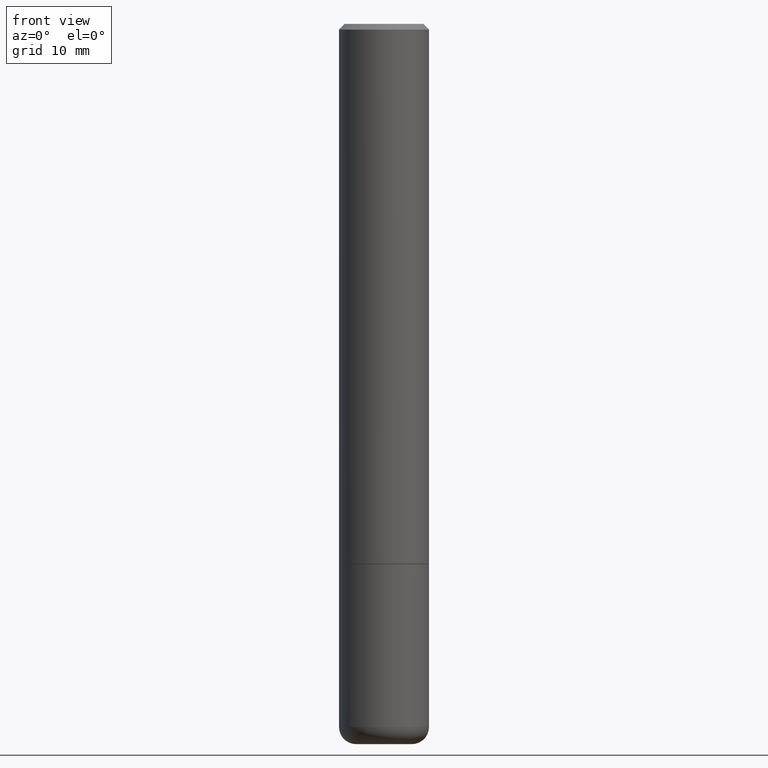
[diagram: clean part render]
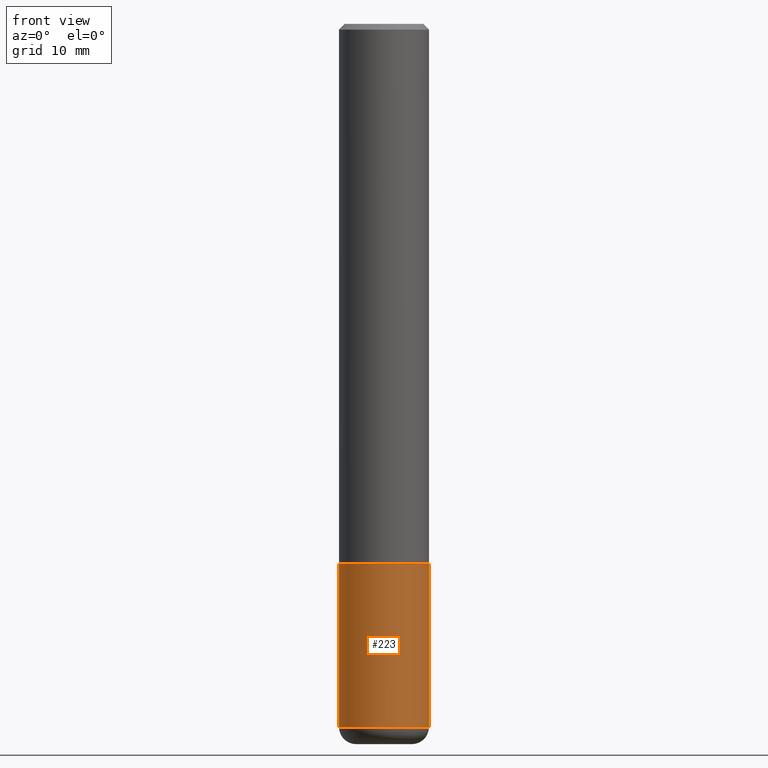
[diagram: same view with one face highlighted and labeled with its STEP entity id]
A machine part, front view. The second image highlights one B-rep face of the part: STEP entity #223.
In plain terms, the highlighted cylindrical surface (partial cylindrical patch) has radius 3.9688 mm, axis along (-0, 0, 1).
Its self-contained STEP definition (entity closure, byte-faithful):
#24 = FACE_OUTER_BOUND ( 'NONE', #167, .T. ) ;
#28 = DIRECTION ( 'NONE',  ( -2.445468806185136877E-29, 3.491481338843145188E-15, 1.000000000000000000 ) ) ;
#39 = CIRCLE ( 'NONE', #181, 0.1562500000000000000 ) ;
#66 = VERTEX_POINT ( 'NONE', #270 ) ;
#93 = ORIENTED_EDGE ( 'NONE', *, *, #144, .F. ) ;
#94 = DIRECTION ( 'NONE',  ( -2.445468806185136877E-29, 3.491481338843145188E-15, 1.000000000000000000 ) ) ;
#126 = DIRECTION ( 'NONE',  ( 1.000000000000000000, -6.982962677686266711E-15, 4.876176775795936353E-29 ) ) ;
#128 = CARTESIAN_POINT ( 'NONE',  ( -0.1562500000000001110, -7.408991442152118508E-15, -2.440000000000000391 ) ) ;
#139 = ORIENTED_EDGE ( 'NONE', *, *, #230, .F. ) ;
#144 = EDGE_CURVE ( 'NONE', #66, #348, #39, .T. ) ;
#158 = LINE ( 'NONE', #301, #310 ) ;
#167 = EDGE_LOOP ( 'NONE', ( #139, #272, #192, #93 ) ) ;
#173 = CARTESIAN_POINT ( 'NONE',  ( 4.585254011597131119E-29, -6.546527510330898707E-15, -1.875000000000000000 ) ) ;
#180 = CARTESIAN_POINT ( 'NONE',  ( 0.1562500000000001110, -9.610302385165753433E-15, -2.440000000000000391 ) ) ;
#181 = AXIS2_PLACEMENT_3D ( 'NONE', #173, #208, #235 ) ;
#192 = ORIENTED_EDGE ( 'NONE', *, *, #214, .T. ) ;
#208 = DIRECTION ( 'NONE',  ( -2.445468806185136597E-29, 3.491481338843145583E-15, 1.000000000000000000 ) ) ;
#214 = EDGE_CURVE ( 'NONE', #375, #348, #158, .T. ) ;
#218 = EDGE_CURVE ( 'NONE', #368, #375, #228, .T. ) ;
#221 = AXIS2_PLACEMENT_3D ( 'NONE', #367, #404, #126 ) ;
#223 = ADVANCED_FACE ( 'NONE', ( #24 ), #282, .T. ) ;
#228 = CIRCLE ( 'NONE', #370, 0.1562500000000000000 ) ;
#230 = EDGE_CURVE ( 'NONE', #368, #66, #241, .T. ) ;
#235 = DIRECTION ( 'NONE',  ( 1.000000000000000000, -6.982962677686269077E-15, 0.000000000000000000 ) ) ;
#241 = LINE ( 'NONE', #369, #339 ) ;
#245 = DIRECTION ( 'NONE',  ( 1.000000000000000000, -6.982962677686262766E-15, 0.000000000000000000 ) ) ;
#270 = CARTESIAN_POINT ( 'NONE',  ( -0.1562500000000000000, -6.422647963928930337E-15, -1.875000000000000000 ) ) ;
#272 = ORIENTED_EDGE ( 'NONE', *, *, #218, .T. ) ;
#275 = CARTESIAN_POINT ( 'NONE',  ( 5.966943887091733341E-29, -8.519214466777275048E-15, -2.440000000000000391 ) ) ;
#276 = CARTESIAN_POINT ( 'NONE',  ( 0.1562500000000000000, -7.637615428719378669E-15, -1.875000000000000000 ) ) ;
#282 = CYLINDRICAL_SURFACE ( 'NONE', #221, 0.1562500000000000000 ) ;
#301 = CARTESIAN_POINT ( 'NONE',  ( 0.1562500000000000000, -1.091087918388479174E-15, 7.619026212181150377E-30 ) ) ;
#310 = VECTOR ( 'NONE', #28, 39.37007874015748143 ) ;
#339 = VECTOR ( 'NONE', #94, 39.37007874015748143 ) ;
#342 = DIRECTION ( 'NONE',  ( -2.445468806185136597E-29, 3.491481338843145583E-15, 1.000000000000000000 ) ) ;
#348 = VERTEX_POINT ( 'NONE', #276 ) ;
#367 = CARTESIAN_POINT ( 'NONE',  ( 0.000000000000000000, 0.000000000000000000, 0.000000000000000000 ) ) ;
#368 = VERTEX_POINT ( 'NONE', #128 ) ;
#369 = CARTESIAN_POINT ( 'NONE',  ( -0.1562500000000000000, 1.110223024625156540E-15, -7.685836078523291160E-30 ) ) ;
#370 = AXIS2_PLACEMENT_3D ( 'NONE', #275, #342, #245 ) ;
#375 = VERTEX_POINT ( 'NONE', #180 ) ;
#404 = DIRECTION ( 'NONE',  ( -2.445468806185136597E-29, 3.491481338843145583E-15, 1.000000000000000000 ) ) ;